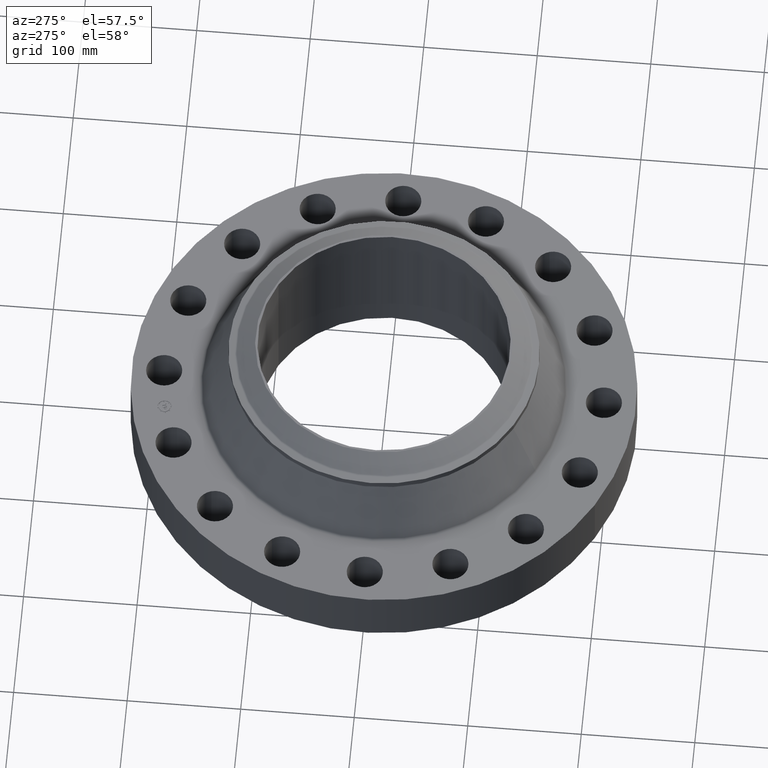
[diagram: clean part render]
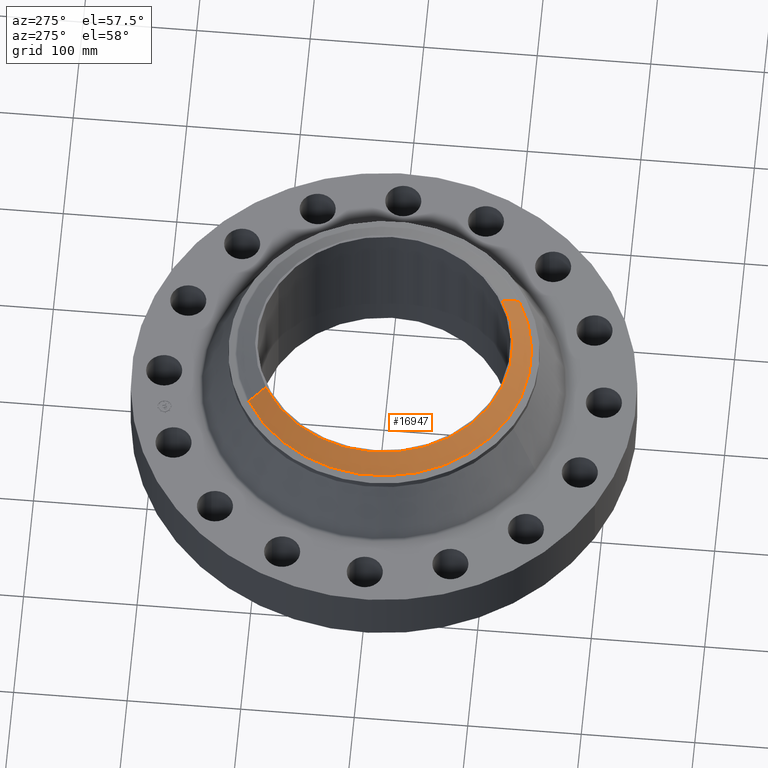
[diagram: same view with one face highlighted and labeled with its STEP entity id]
A machine part, auxiliary view. The second image highlights one B-rep face of the part: STEP entity #16947.
In plain terms, the highlighted conical surface has half-angle 52.5 deg.
Its self-contained STEP definition (entity closure, byte-faithful):
#6052=AXIS2_PLACEMENT_3D('Circle Axis2P3D',#6050,#6051,$) ;
#16920=AXIS2_PLACEMENT_3D('Cone Axis2P3D',#16917,#16918,#16919) ;
#16924=AXIS2_PLACEMENT_3D('Circle Axis2P3D',#16922,#16923,$) ;
#6050=CARTESIAN_POINT('Axis2P3D Location',(0.,0.,4.38402874515)) ;
#6054=CARTESIAN_POINT('Vertex',(-2.44511937891,4.47576100122,4.38402874515)) ;
#6056=CARTESIAN_POINT('Vertex',(2.44511937891,-4.47576100122,4.38402874515)) ;
#16917=CARTESIAN_POINT('Axis2P3D Location',(0.,0.,4.88000000002)) ;
#16922=CARTESIAN_POINT('Axis2P3D Location',(0.,0.,4.88000000002)) ;
#16926=CARTESIAN_POINT('Vertex',(-2.13523677382,3.90852469739,4.88000000002)) ;
#16928=CARTESIAN_POINT('Vertex',(2.13523677382,-3.90852469738,4.88000000002)) ;
#16931=CARTESIAN_POINT('Line Origine',(-2.29017807636,4.19214284932,4.63201437259)) ;
#16936=CARTESIAN_POINT('Line Origine',(2.29017807636,-4.19214284932,4.63201437259)) ;
#6051=DIRECTION('Axis2P3D Direction',(0.,0.,0.0393700787402)) ;
#16918=DIRECTION('Axis2P3D Direction',(-0.,-0.,-0.0393700787402)) ;
#16919=DIRECTION('Axis2P3D XDirection',(0.0188750212049,-0.0345504945626,0.)) ;
#16923=DIRECTION('Axis2P3D Direction',(0.,-0.,-0.0393700787402)) ;
#16932=DIRECTION('Vector Direction',(-0.014974561121,0.02741075027,-0.023966985394)) ;
#16937=DIRECTION('Vector Direction',(0.014974561121,-0.02741075027,-0.023966985394)) ;
#16933=VECTOR('Line Direction',#16932,0.0393700787402) ;
#16938=VECTOR('Line Direction',#16937,0.0393700787402) ;
#16942=ORIENTED_EDGE('',*,*,#16930,.F.) ;
#16943=ORIENTED_EDGE('',*,*,#16935,.T.) ;
#16944=ORIENTED_EDGE('',*,*,#6058,.T.) ;
#16945=ORIENTED_EDGE('',*,*,#16940,.F.) ;
#16947=ADVANCED_FACE('PartBody',(#16946),#16921,.T.) ;
#6053=CIRCLE('generated circle',#6052,5.10010248105) ;
#16925=CIRCLE('generated circle',#16924,4.4537401575) ;
#16921=CONICAL_SURFACE('Cone',#16920,4.4537401575,0.916297857297) ;
#6058=EDGE_CURVE('',#6055,#6057,#6053,.T.) ;
#16930=EDGE_CURVE('',#16927,#16929,#16925,.F.) ;
#16935=EDGE_CURVE('',#16927,#6055,#16934,.T.) ;
#16940=EDGE_CURVE('',#16929,#6057,#16939,.T.) ;
#16941=EDGE_LOOP('',(#16942,#16943,#16944,#16945)) ;
#16946=FACE_OUTER_BOUND('',#16941,.T.) ;
#16934=LINE('Line',#16931,#16933) ;
#16939=LINE('Line',#16936,#16938) ;
#6055=VERTEX_POINT('',#6054) ;
#6057=VERTEX_POINT('',#6056) ;
#16927=VERTEX_POINT('',#16926) ;
#16929=VERTEX_POINT('',#16928) ;